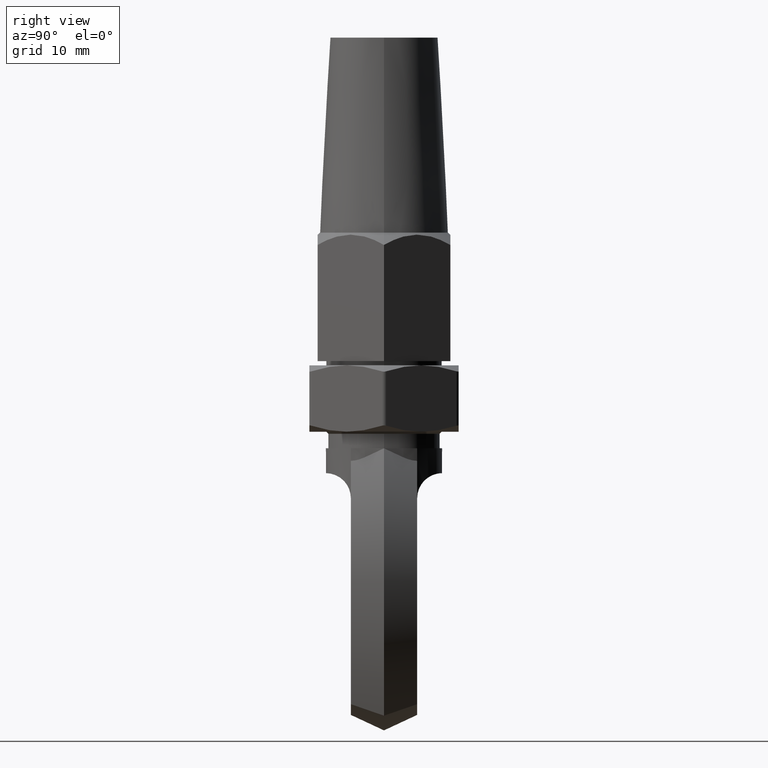
[diagram: clean part render]
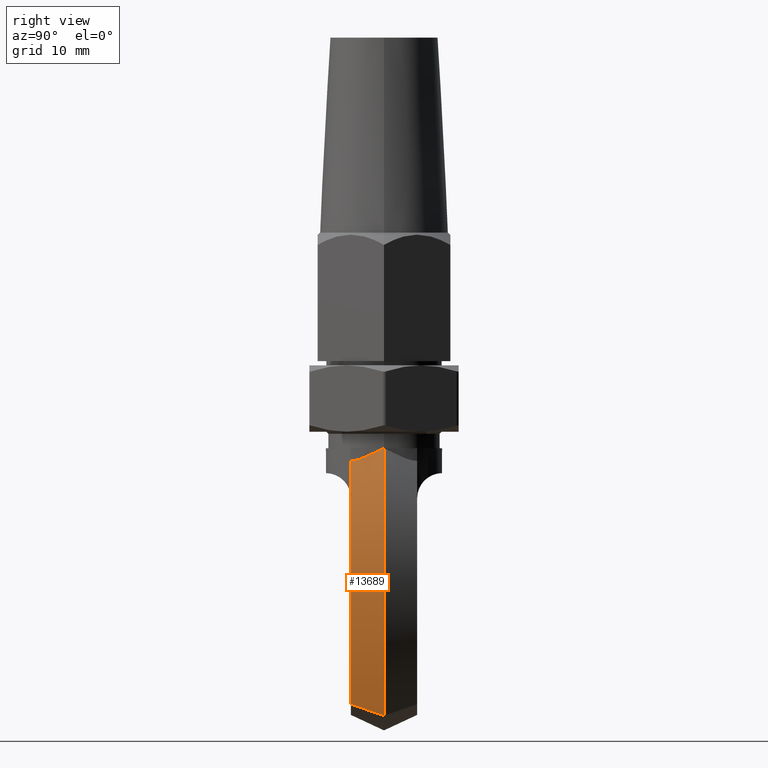
[diagram: same view with one face highlighted and labeled with its STEP entity id]
A machine part, right view. The second image highlights one B-rep face of the part: STEP entity #13689.
In plain terms, the highlighted conical surface has half-angle 25 deg.
Its self-contained STEP definition (entity closure, byte-faithful):
#696 = ORIENTED_EDGE ( 'NONE', *, *, #16973, .F. ) ;
#1180 = EDGE_CURVE ( 'NONE', #2877, #14869, #4103, .T. ) ;
#1181 = CIRCLE ( 'NONE', #1369, 35.00000000000006400 ) ;
#1355 = EDGE_CURVE ( 'NONE', #14869, #5243, #3794, .T. ) ;
#1369 = AXIS2_PLACEMENT_3D ( 'NONE', #11264, #16829, #16563 ) ;
#1527 = DIRECTION ( 'NONE',  ( -0.0000000000000000000, 1.000000000000000000, -0.0000000000000000000 ) ) ;
#2109 = B_SPLINE_CURVE_WITH_KNOTS ( 'NONE', 3,
 ( #5897, #7414, #8779, #17839, #13250, #19329 ),
 .UNSPECIFIED., .F., .F.,
 ( 4, 2, 4 ),
 ( 0.0000000000000000000, 0.0009411240758053450700, 0.001882248151610690100 ),
 .UNSPECIFIED. ) ;
#2386 = B_SPLINE_CURVE_WITH_KNOTS ( 'NONE', 3,
 ( #14832, #13444, #13638, #13702 ),
 .UNSPECIFIED., .F., .F.,
 ( 4, 4 ),
 ( 0.4255798397408839300, 0.9999997319366349400 ),
 .UNSPECIFIED. ) ;
#2877 = VERTEX_POINT ( 'NONE', #8176 ) ;
#3062 = VERTEX_POINT ( 'NONE', #8692 ) ;
#3520 = ORIENTED_EDGE ( 'NONE', *, *, #11563, .T. ) ;
#3794 = B_SPLINE_CURVE_WITH_KNOTS ( 'NONE', 3,
 ( #9685, #15537, #11115, #17027 ),
 .UNSPECIFIED., .F., .F.,
 ( 4, 4 ),
 ( 0.0000000000000000000, 0.004455356517817775400 ),
 .UNSPECIFIED. ) ;
#4103 = CIRCLE ( 'NONE', #13387, 33.13476936738007300 ) ;
#4380 = AXIS2_PLACEMENT_3D ( 'NONE', #4596, #1527, #7490 ) ;
#4596 = CARTESIAN_POINT ( 'NONE',  ( -24.00000000000000400, -0.0000000000000000000, -16.11479982947690500 ) ) ;
#5243 = VERTEX_POINT ( 'NONE', #8065 ) ;
#5897 = CARTESIAN_POINT ( 'NONE',  ( 6.410950310214195400, -2.298771942587025700, -1.071657956121892900 ) ) ;
#6257 = ORIENTED_EDGE ( 'NONE', *, *, #1355, .T. ) ;
#6433 = ORIENTED_EDGE ( 'NONE', *, *, #1180, .T. ) ;
#6873 = EDGE_CURVE ( 'NONE', #3062, #5243, #1181, .T. ) ;
#7414 = CARTESIAN_POINT ( 'NONE',  ( 6.330366081467264600, -2.577077647122389500, -1.201727322915150400 ) ) ;
#7490 = DIRECTION ( 'NONE',  ( 0.0000000000000000000, 0.0000000000000000000, -1.000000000000000000 ) ) ;
#8065 = CARTESIAN_POINT ( 'NONE',  ( 7.069490283168394600, 0.0000000000000000000, -32.22959965895381600 ) ) ;
#8176 = CARTESIAN_POINT ( 'NONE',  ( 5.744562646538022400, -4.000000000000000000, -1.514322645643384500 ) ) ;
#8588 = CARTESIAN_POINT ( 'NONE',  ( 6.410950310214195400, -2.298771942587025700, -1.071657956121892900 ) ) ;
#8692 = CARTESIAN_POINT ( 'NONE',  ( 7.069490283168403400, 0.0000000000000000000, -6.938893903907228400E-015 ) ) ;
#8779 = CARTESIAN_POINT ( 'NONE',  ( 6.235995348683323100, -2.857950761602797500, -1.306926722532890400 ) ) ;
#9048 = CARTESIAN_POINT ( 'NONE',  ( 5.681918644637110400, -4.000000000000000000, -30.84221123143795400 ) ) ;
#9685 = CARTESIAN_POINT ( 'NONE',  ( 5.681918644637110400, -4.000000000000000000, -30.84221123143795400 ) ) ;
#10462 = CARTESIAN_POINT ( 'NONE',  ( -24.00000000000000400, -4.000000000000000000, -16.11479982947690500 ) ) ;
#11115 = CARTESIAN_POINT ( 'NONE',  ( 6.605938529736413900, -1.334563344979647700, -31.77171112412415600 ) ) ;
#11264 = CARTESIAN_POINT ( 'NONE',  ( -24.00000000000000400, 0.0000000000000000000, -16.11479982947690500 ) ) ;
#11365 = CONICAL_SURFACE ( 'NONE', #4380, 35.00000000000006400, 0.4363323129985826600 ) ;
#11563 = EDGE_CURVE ( 'NONE', #14174, #2877, #2109, .T. ) ;
#11981 = DIRECTION ( 'NONE',  ( -0.0000000000000000000, 1.000000000000000000, -0.0000000000000000000 ) ) ;
#13029 = ORIENTED_EDGE ( 'NONE', *, *, #6873, .F. ) ;
#13250 = CARTESIAN_POINT ( 'NONE',  ( 5.887216802352884100, -3.715527066248424800, -1.503897994014174600 ) ) ;
#13387 = AXIS2_PLACEMENT_3D ( 'NONE', #10462, #11981, #17708 ) ;
#13444 = CARTESIAN_POINT ( 'NONE',  ( 6.632669935650837600, -1.533109498556789000, -0.7142842192731960700 ) ) ;
#13638 = CARTESIAN_POINT ( 'NONE',  ( 6.852146688790976500, -0.7668083420147058200, -0.3571423596365999000 ) ) ;
#13689 = ADVANCED_FACE ( 'NONE', ( #17412 ), #11365, .T. ) ;
#13702 = CARTESIAN_POINT ( 'NONE',  ( 7.069490283168403400, 0.0000000000000000000, -6.938893903907228400E-015 ) ) ;
#14174 = VERTEX_POINT ( 'NONE', #8588 ) ;
#14832 = CARTESIAN_POINT ( 'NONE',  ( 6.410950310214195400, -2.298771942587025700, -1.071657956121892900 ) ) ;
#14869 = VERTEX_POINT ( 'NONE', #9048 ) ;
#15537 = CARTESIAN_POINT ( 'NONE',  ( 6.143304436799287900, -2.668028565887391700, -31.30973878994047900 ) ) ;
#16563 = DIRECTION ( 'NONE',  ( 0.0000000000000000000, 0.0000000000000000000, -1.000000000000000000 ) ) ;
#16829 = DIRECTION ( 'NONE',  ( 0.0000000000000000000, 1.000000000000000000, -0.0000000000000000000 ) ) ;
#16973 = EDGE_CURVE ( 'NONE', #14174, #3062, #2386, .T. ) ;
#17027 = CARTESIAN_POINT ( 'NONE',  ( 7.069490283168394600, 0.0000000000000000000, -32.22959965895381600 ) ) ;
#17412 = FACE_OUTER_BOUND ( 'NONE', #18052, .T. ) ;
#17708 = DIRECTION ( 'NONE',  ( -3.560042777377868600E-015, 0.0000000000000000000, -1.000000000000000000 ) ) ;
#17839 = CARTESIAN_POINT ( 'NONE',  ( 6.015095534657603200, -3.425956492674617300, -1.458125621152768000 ) ) ;
#18052 = EDGE_LOOP ( 'NONE', ( #13029, #696, #3520, #6433, #6257 ) ) ;
#19329 = CARTESIAN_POINT ( 'NONE',  ( 5.744562646538022400, -4.000000000000000000, -1.514322645643384500 ) ) ;